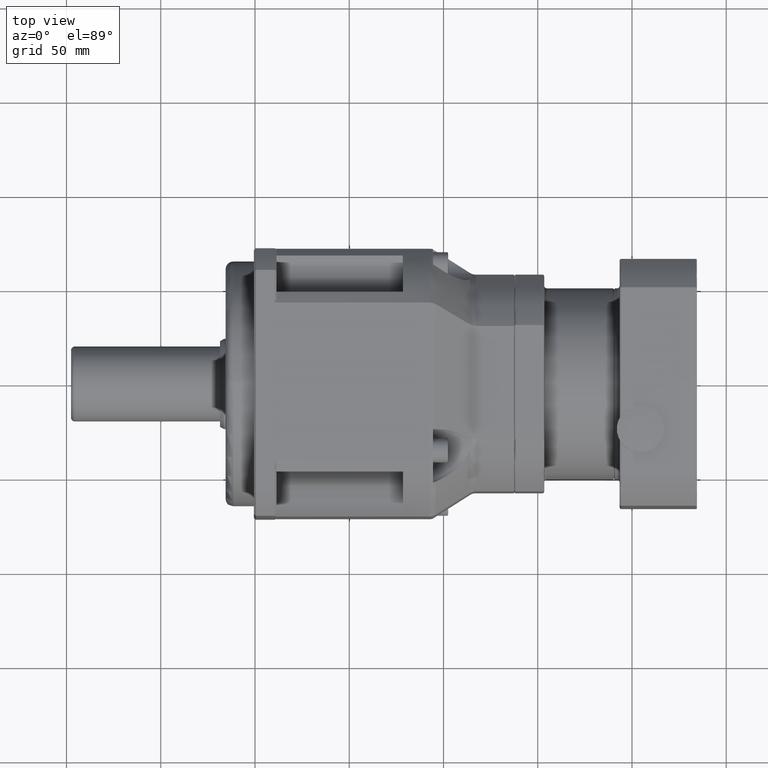
[diagram: clean part render]
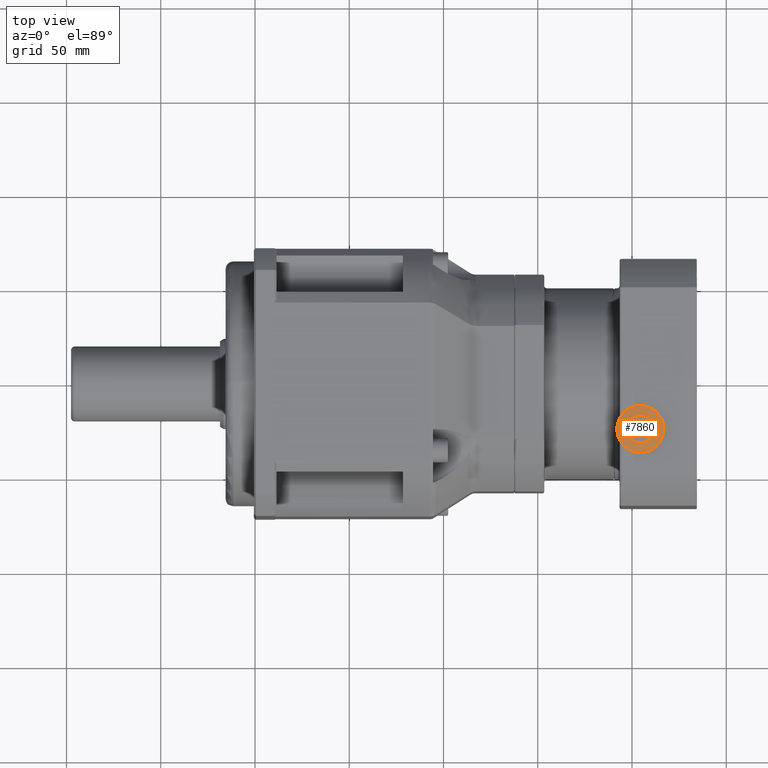
[diagram: same view with one face highlighted and labeled with its STEP entity id]
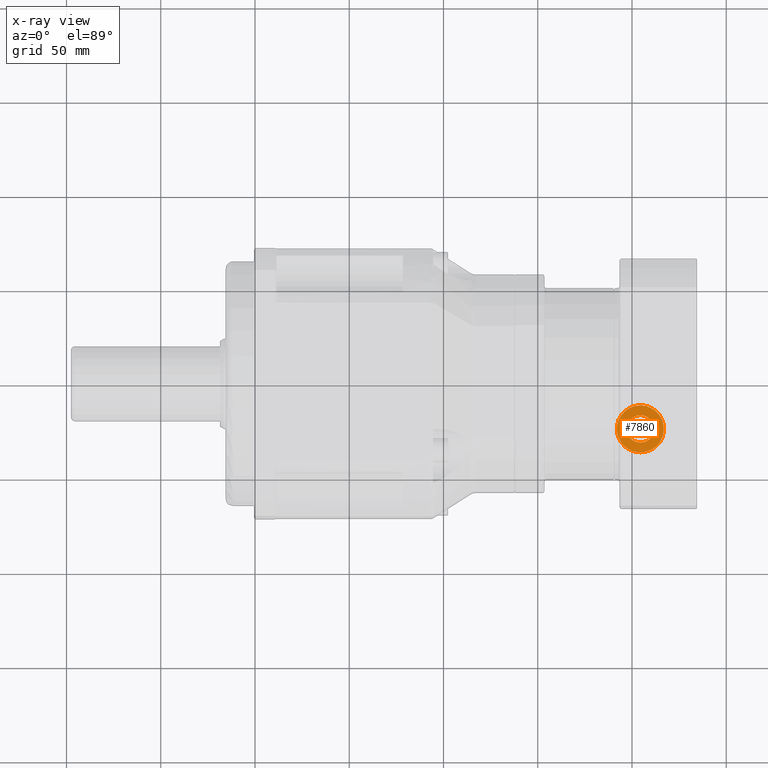
[diagram: x-ray of the same camera — body ghosted, the highlighted face saturated]
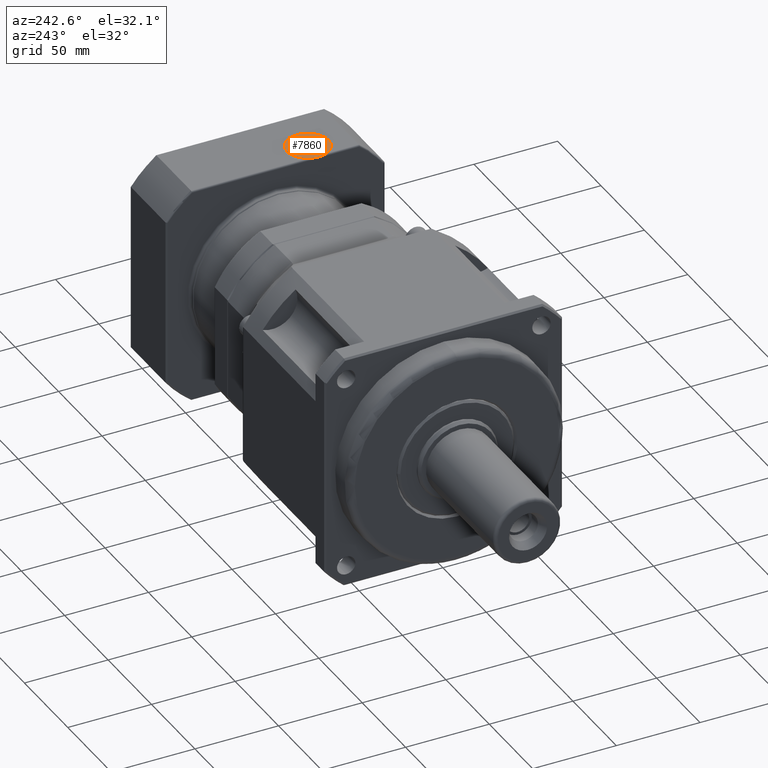
[diagram: same view with one face highlighted and labeled with its STEP entity id]
A machine part, top view. The second image highlights one B-rep face of the part: STEP entity #7860.
The next image is the same camera in x-ray: the body ghosted, the highlighted face saturated — about 0% of this face is hidden behind the body in this view.
A second angle (auxiliary view) of the same face is appended — the face is thin or edge-on in the first view.
In plain terms, the highlighted conical surface has half-angle 86.73 deg.
Its self-contained STEP definition (entity closure, byte-faithful):
#1072=CONICAL_SURFACE('',#8530,9.875,86.7295120768165);
#1536=FACE_BOUND('',#2491,.T.);
#1863=FACE_OUTER_BOUND('',#2490,.T.);
#2490=EDGE_LOOP('',(#5610));
#2491=EDGE_LOOP('',(#5611));
#3161=CIRCLE('',#8529,7.25);
#3162=CIRCLE('',#8531,12.5);
#3617=VERTEX_POINT('',#12057);
#3618=VERTEX_POINT('',#12060);
#4396=EDGE_CURVE('',#3617,#3617,#3161,.T.);
#4397=EDGE_CURVE('',#3618,#3618,#3162,.T.);
#5610=ORIENTED_EDGE('',*,*,#4396,.T.);
#5611=ORIENTED_EDGE('',*,*,#4397,.F.);
#7860=ADVANCED_FACE('',(#1863,#1536),#1072,.T.);
#8529=AXIS2_PLACEMENT_3D('',#12058,#9769,#9770);
#8530=AXIS2_PLACEMENT_3D('',#12059,#9771,#9772);
#8531=AXIS2_PLACEMENT_3D('',#12061,#9773,#9774);
#9769=DIRECTION('center_axis',(-1.15918820918505E-15,2.09077877996203E-15,
-1.));
#9770=DIRECTION('ref_axis',(-1.,-2.27447579983414E-15,1.15918820918505E-15));
#9771=DIRECTION('center_axis',(-1.15918820918505E-15,2.09077877996203E-15,
-1.));
#9772=DIRECTION('ref_axis',(-2.27447579983414E-15,1.,2.11156955422962E-15));
#9773=DIRECTION('center_axis',(-1.15918820918505E-15,2.09077877996203E-15,
-1.));
#9774=DIRECTION('ref_axis',(-1.,-2.27447579983414E-15,1.15918820918505E-15));
#12057=CARTESIAN_POINT('',(-45.5593852728364,-168.060004596179,-10.5025259929325));
#12058=CARTESIAN_POINT('Origin',(-45.5593852728364,-175.310004596179,-10.5025259929325));
#12059=CARTESIAN_POINT('Origin',(-45.5593852728364,-175.310004596179,-10.6525259929325));
#12060=CARTESIAN_POINT('',(-45.5593852728364,-162.810004596179,-10.8025259929325));
#12061=CARTESIAN_POINT('Origin',(-45.5593852728364,-175.310004596179,-10.8025259929325));